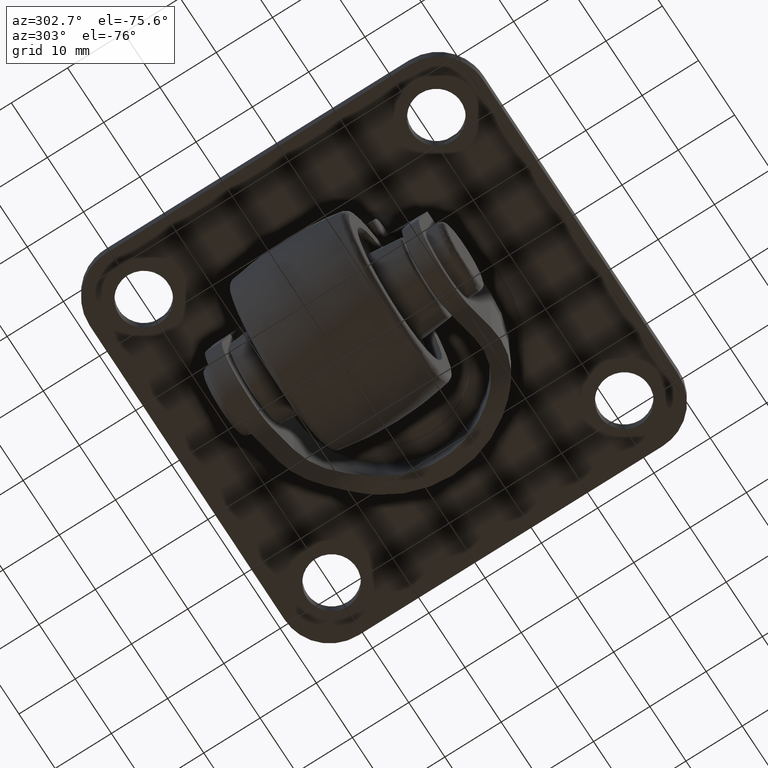
[diagram: clean part render]
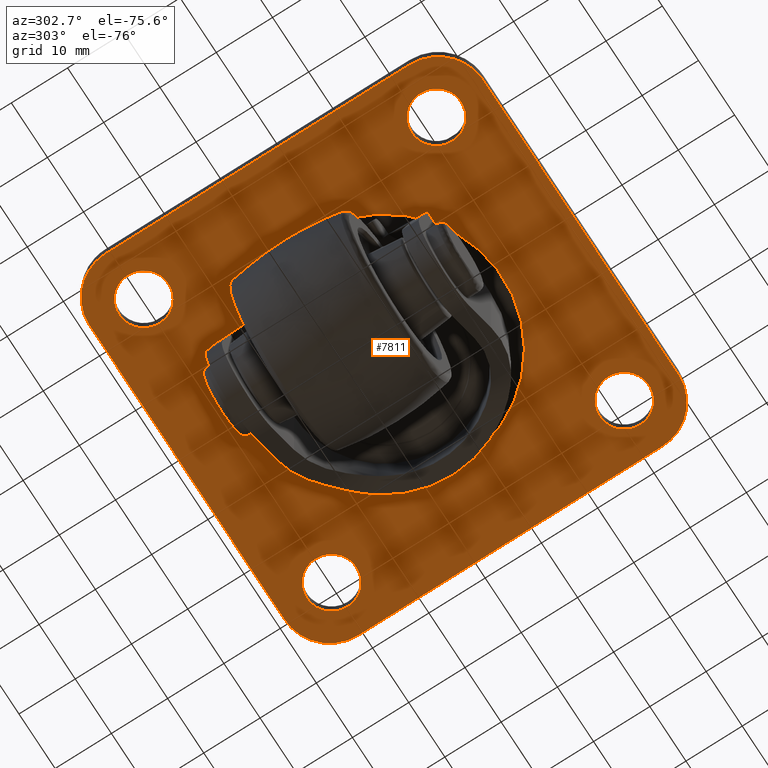
[diagram: same view with one face highlighted and labeled with its STEP entity id]
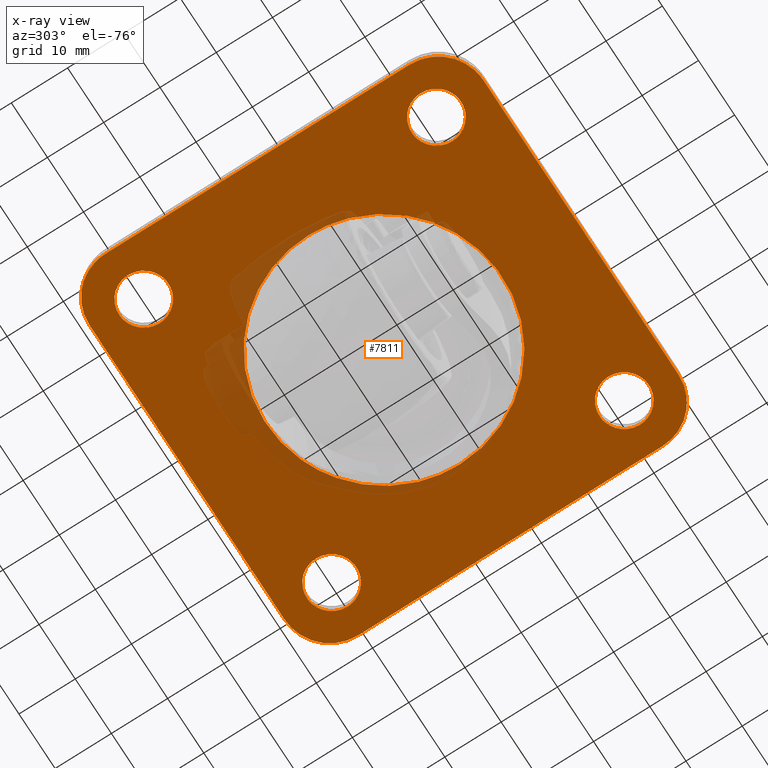
[diagram: x-ray of the same camera — body ghosted, the highlighted face saturated]
A machine part, auxiliary view. The second image highlights one B-rep face of the part: STEP entity #7811.
The next image is the same camera in x-ray: the body ghosted, the highlighted face saturated — about 6% of this face is hidden behind the body in this view.
In plain terms, the highlighted face is a freeform B-spline surface patch.
Its self-contained STEP definition (entity closure, byte-faithful):
#2657=CARTESIAN_POINT('',(37.480649367378497,21.630758084015529,27.699999999999999));
#2658=VERTEX_POINT('',#2657);
#2659=CARTESIAN_POINT('',(42.399999999999999,26.0,27.699999999999999));
#2660=VERTEX_POINT('',#2659);
#2661=CARTESIAN_POINT('',(37.480649367378497,21.630758084015529,27.700000000000006));
#2662=CARTESIAN_POINT('',(37.739413873398455,21.599999999999998,27.699999999999999));
#2663=CARTESIAN_POINT('',(38.0,21.600000000000001,27.699999999999999));
#2664=CARTESIAN_POINT('',(42.400000000000006,21.600000000000005,27.700000000000003));
#2665=CARTESIAN_POINT('',(42.399999999999999,26.0,27.699999999999999));
#2673=(BOUNDED_CURVE()B_SPLINE_CURVE(2,(#2661,#2662,#2663,#2664,#2665),.UNSPECIFIED.,.F.,.U.)B_SPLINE_CURVE_WITH_KNOTS((3,2,3),(0.229562473505452,0.250000000000000,0.500000000000000),.UNSPECIFIED.)CURVE()GEOMETRIC_REPRESENTATION_ITEM()RATIONAL_B_SPLINE_CURVE((0.956026754167909,0.976055948321707,1.0,0.707106781186548,1.0))REPRESENTATION_ITEM(''));
#2674=EDGE_CURVE('',#2658,#2660,#2673,.T.);
#2715=CARTESIAN_POINT('',(38.268609119550703,30.391793385494619,27.699999999999878));
#2716=VERTEX_POINT('',#2715);
#2722=CARTESIAN_POINT('',(42.399999999999999,26.0,27.699999999999999));
#2723=CARTESIAN_POINT('',(42.399999999999999,30.139110900345699,27.699999999999992));
#2724=CARTESIAN_POINT('',(38.268609119550703,30.391793385494619,27.699999999999878));
#2732=(BOUNDED_CURVE()B_SPLINE_CURVE(2,(#2722,#2723,#2724),.UNSPECIFIED.,.F.,.U.)B_SPLINE_CURVE_WITH_KNOTS((3,3),(0.500000000000000,0.739333137248614),.UNSPECIFIED.)CURVE()GEOMETRIC_REPRESENTATION_ITEM()RATIONAL_B_SPLINE_CURVE((1.0,0.719603788250127,0.976072416746044))REPRESENTATION_ITEM(''));
#2733=EDGE_CURVE('',#2660,#2716,#2732,.T.);
#2756=CARTESIAN_POINT('',(33.600000000000001,26.0,27.699999999999999));
#2757=VERTEX_POINT('',#2756);
#2758=CARTESIAN_POINT('',(33.600000000000001,26.0,27.699999999999999));
#2759=CARTESIAN_POINT('',(33.600000000000001,22.092032086051322,27.700000000000003));
#2760=CARTESIAN_POINT('',(37.480649367378504,21.630758084015536,27.700000000000003));
#2768=(BOUNDED_CURVE()B_SPLINE_CURVE(2,(#2758,#2759,#2760),.UNSPECIFIED.,.F.,.U.)B_SPLINE_CURVE_WITH_KNOTS((3,3),(0.0,0.229562473505452),.UNSPECIFIED.)CURVE()GEOMETRIC_REPRESENTATION_ITEM()RATIONAL_B_SPLINE_CURVE((1.0,0.731050832864841,0.956026754167909))REPRESENTATION_ITEM(''));
#2769=EDGE_CURVE('',#2757,#2658,#2768,.T.);
#2771=CARTESIAN_POINT('',(38.268609119550703,30.391793385494619,27.699999999999878));
#2772=CARTESIAN_POINT('',(38.134429925067771,30.400000000000002,27.699999999999999));
#2773=CARTESIAN_POINT('',(38.0,30.399999999999999,27.699999999999999));
#2774=CARTESIAN_POINT('',(33.600000000000001,30.400000000000002,27.700000000000003));
#2775=CARTESIAN_POINT('',(33.600000000000001,26.0,27.699999999999999));
#2783=(BOUNDED_CURVE()B_SPLINE_CURVE(2,(#2771,#2772,#2773,#2774,#2775),.UNSPECIFIED.,.F.,.U.)B_SPLINE_CURVE_WITH_KNOTS((3,2,3),(0.739333137248614,0.750000000000000,1.0),.UNSPECIFIED.)CURVE()GEOMETRIC_REPRESENTATION_ITEM()RATIONAL_B_SPLINE_CURVE((0.976072416746044,0.987502992936421,1.0,0.707106781186548,1.0))REPRESENTATION_ITEM(''));
#2784=EDGE_CURVE('',#2716,#2757,#2783,.T.);
#2843=CARTESIAN_POINT('',(37.480649367378497,-30.369241915984471,27.699999999999999));
#2844=VERTEX_POINT('',#2843);
#2845=CARTESIAN_POINT('',(42.399999999999999,-26.0,27.699999999999999));
#2846=VERTEX_POINT('',#2845);
#2847=CARTESIAN_POINT('',(37.480649367378497,-30.369241915984471,27.700000000000006));
#2848=CARTESIAN_POINT('',(37.739413873398455,-30.399999999999999,27.699999999999999));
#2849=CARTESIAN_POINT('',(38.0,-30.399999999999999,27.699999999999999));
#2850=CARTESIAN_POINT('',(42.400000000000006,-30.400000000000002,27.700000000000003));
#2851=CARTESIAN_POINT('',(42.399999999999999,-26.0,27.699999999999999));
#2859=(BOUNDED_CURVE()B_SPLINE_CURVE(2,(#2847,#2848,#2849,#2850,#2851),.UNSPECIFIED.,.F.,.U.)B_SPLINE_CURVE_WITH_KNOTS((3,2,3),(0.229562473505452,0.250000000000000,0.500000000000000),.UNSPECIFIED.)CURVE()GEOMETRIC_REPRESENTATION_ITEM()RATIONAL_B_SPLINE_CURVE((0.956026754167909,0.976055948321707,1.0,0.707106781186548,1.0))REPRESENTATION_ITEM(''));
#2860=EDGE_CURVE('',#2844,#2846,#2859,.T.);
#2901=CARTESIAN_POINT('',(38.268609119550703,-21.608206614505381,27.699999999999878));
#2902=VERTEX_POINT('',#2901);
#2908=CARTESIAN_POINT('',(42.399999999999999,-26.0,27.699999999999999));
#2909=CARTESIAN_POINT('',(42.399999999999999,-21.860889099654294,27.699999999999992));
#2910=CARTESIAN_POINT('',(38.268609119550703,-21.608206614505381,27.699999999999878));
#2918=(BOUNDED_CURVE()B_SPLINE_CURVE(2,(#2908,#2909,#2910),.UNSPECIFIED.,.F.,.U.)B_SPLINE_CURVE_WITH_KNOTS((3,3),(0.500000000000000,0.739333137248614),.UNSPECIFIED.)CURVE()GEOMETRIC_REPRESENTATION_ITEM()RATIONAL_B_SPLINE_CURVE((1.0,0.719603788250127,0.976072416746044))REPRESENTATION_ITEM(''));
#2919=EDGE_CURVE('',#2846,#2902,#2918,.T.);
#2942=CARTESIAN_POINT('',(33.600000000000001,-26.0,27.699999999999999));
#2943=VERTEX_POINT('',#2942);
#2944=CARTESIAN_POINT('',(33.600000000000001,-26.0,27.699999999999999));
#2945=CARTESIAN_POINT('',(33.600000000000001,-29.907967913948671,27.700000000000003));
#2946=CARTESIAN_POINT('',(37.480649367378504,-30.369241915984468,27.700000000000003));
#2954=(BOUNDED_CURVE()B_SPLINE_CURVE(2,(#2944,#2945,#2946),.UNSPECIFIED.,.F.,.U.)B_SPLINE_CURVE_WITH_KNOTS((3,3),(0.0,0.229562473505452),.UNSPECIFIED.)CURVE()GEOMETRIC_REPRESENTATION_ITEM()RATIONAL_B_SPLINE_CURVE((1.0,0.731050832864841,0.956026754167909))REPRESENTATION_ITEM(''));
#2955=EDGE_CURVE('',#2943,#2844,#2954,.T.);
#2957=CARTESIAN_POINT('',(38.268609119550703,-21.608206614505381,27.699999999999878));
#2958=CARTESIAN_POINT('',(38.134429925067771,-21.599999999999994,27.699999999999999));
#2959=CARTESIAN_POINT('',(38.0,-21.600000000000001,27.699999999999999));
#2960=CARTESIAN_POINT('',(33.600000000000001,-21.600000000000005,27.700000000000003));
#2961=CARTESIAN_POINT('',(33.600000000000001,-26.0,27.699999999999999));
#2969=(BOUNDED_CURVE()B_SPLINE_CURVE(2,(#2957,#2958,#2959,#2960,#2961),.UNSPECIFIED.,.F.,.U.)B_SPLINE_CURVE_WITH_KNOTS((3,2,3),(0.739333137248614,0.750000000000000,1.0),.UNSPECIFIED.)CURVE()GEOMETRIC_REPRESENTATION_ITEM()RATIONAL_B_SPLINE_CURVE((0.976072416746044,0.987502992936421,1.0,0.707106781186548,1.0))REPRESENTATION_ITEM(''));
#2970=EDGE_CURVE('',#2902,#2943,#2969,.T.);
#3029=CARTESIAN_POINT('',(-14.519350632621480,-30.369241915984471,27.699999999999999));
#3030=VERTEX_POINT('',#3029);
#3031=CARTESIAN_POINT('',(-9.600000000000001,-26.0,27.699999999999999));
#3032=VERTEX_POINT('',#3031);
#3033=CARTESIAN_POINT('',(-14.519350632621480,-30.369241915984464,27.700000000000003));
#3034=CARTESIAN_POINT('',(-14.260586126601543,-30.399999999999991,27.699999999999999));
#3035=CARTESIAN_POINT('',(-14.0,-30.399999999999999,27.699999999999999));
#3036=CARTESIAN_POINT('',(-9.600000000000001,-30.400000000000002,27.700000000000003));
#3037=CARTESIAN_POINT('',(-9.600000000000001,-26.0,27.699999999999999));
#3045=(BOUNDED_CURVE()B_SPLINE_CURVE(2,(#3033,#3034,#3035,#3036,#3037),.UNSPECIFIED.,.F.,.U.)B_SPLINE_CURVE_WITH_KNOTS((3,2,3),(0.229562473505453,0.250000000000000,0.500000000000000),.UNSPECIFIED.)CURVE()GEOMETRIC_REPRESENTATION_ITEM()RATIONAL_B_SPLINE_CURVE((0.956026754167910,0.976055948321707,1.0,0.707106781186548,1.0))REPRESENTATION_ITEM(''));
#3046=EDGE_CURVE('',#3030,#3032,#3045,.T.);
#3087=CARTESIAN_POINT('',(-13.731390880449300,-21.608206614505381,27.699999999999878));
#3088=VERTEX_POINT('',#3087);
#3094=CARTESIAN_POINT('',(-9.600000000000001,-26.0,27.699999999999999));
#3095=CARTESIAN_POINT('',(-9.600000000000001,-21.860889099654294,27.699999999999992));
#3096=CARTESIAN_POINT('',(-13.731390880449297,-21.608206614505381,27.699999999999878));
#3104=(BOUNDED_CURVE()B_SPLINE_CURVE(2,(#3094,#3095,#3096),.UNSPECIFIED.,.F.,.U.)B_SPLINE_CURVE_WITH_KNOTS((3,3),(0.500000000000000,0.739333137248614),.UNSPECIFIED.)CURVE()GEOMETRIC_REPRESENTATION_ITEM()RATIONAL_B_SPLINE_CURVE((1.0,0.719603788250127,0.976072416746044))REPRESENTATION_ITEM(''));
#3105=EDGE_CURVE('',#3032,#3088,#3104,.T.);
#3128=CARTESIAN_POINT('',(-18.399999999999999,-26.0,27.699999999999999));
#3129=VERTEX_POINT('',#3128);
#3130=CARTESIAN_POINT('',(-18.399999999999999,-26.0,27.699999999999999));
#3131=CARTESIAN_POINT('',(-18.399999999999991,-29.907967913948696,27.700000000000014));
#3132=CARTESIAN_POINT('',(-14.519350632621483,-30.369241915984471,27.700000000000010));
#3140=(BOUNDED_CURVE()B_SPLINE_CURVE(2,(#3130,#3131,#3132),.UNSPECIFIED.,.F.,.U.)B_SPLINE_CURVE_WITH_KNOTS((3,3),(0.0,0.229562473505453),.UNSPECIFIED.)CURVE()GEOMETRIC_REPRESENTATION_ITEM()RATIONAL_B_SPLINE_CURVE((1.0,0.731050832864841,0.956026754167910))REPRESENTATION_ITEM(''));
#3141=EDGE_CURVE('',#3129,#3030,#3140,.T.);
#3143=CARTESIAN_POINT('',(-13.731390880449304,-21.608206614505388,27.699999999999871));
#3144=CARTESIAN_POINT('',(-13.865570074932227,-21.600000000000005,27.700000000000006));
#3145=CARTESIAN_POINT('',(-14.0,-21.600000000000001,27.699999999999999));
#3146=CARTESIAN_POINT('',(-18.399999999999991,-21.600000000000005,27.700000000000003));
#3147=CARTESIAN_POINT('',(-18.399999999999999,-26.0,27.699999999999999));
#3155=(BOUNDED_CURVE()B_SPLINE_CURVE(2,(#3143,#3144,#3145,#3146,#3147),.UNSPECIFIED.,.F.,.U.)B_SPLINE_CURVE_WITH_KNOTS((3,2,3),(0.739333137248614,0.750000000000000,1.0),.UNSPECIFIED.)CURVE()GEOMETRIC_REPRESENTATION_ITEM()RATIONAL_B_SPLINE_CURVE((0.976072416746045,0.987502992936421,1.0,0.707106781186548,1.0))REPRESENTATION_ITEM(''));
#3156=EDGE_CURVE('',#3088,#3129,#3155,.T.);
#3215=CARTESIAN_POINT('',(-14.519350632621480,21.630758084015529,27.699999999999999));
#3216=VERTEX_POINT('',#3215);
#3217=CARTESIAN_POINT('',(-9.600000000000001,26.0,27.699999999999999));
#3218=VERTEX_POINT('',#3217);
#3219=CARTESIAN_POINT('',(-14.519350632621480,21.630758084015529,27.700000000000003));
#3220=CARTESIAN_POINT('',(-14.260586126601543,21.599999999999994,27.699999999999999));
#3221=CARTESIAN_POINT('',(-14.0,21.600000000000001,27.699999999999999));
#3222=CARTESIAN_POINT('',(-9.600000000000001,21.600000000000005,27.700000000000003));
#3223=CARTESIAN_POINT('',(-9.600000000000001,26.0,27.699999999999999));
#3231=(BOUNDED_CURVE()B_SPLINE_CURVE(2,(#3219,#3220,#3221,#3222,#3223),.UNSPECIFIED.,.F.,.U.)B_SPLINE_CURVE_WITH_KNOTS((3,2,3),(0.229562473505453,0.250000000000000,0.500000000000000),.UNSPECIFIED.)CURVE()GEOMETRIC_REPRESENTATION_ITEM()RATIONAL_B_SPLINE_CURVE((0.956026754167910,0.976055948321707,1.0,0.707106781186548,1.0))REPRESENTATION_ITEM(''));
#3232=EDGE_CURVE('',#3216,#3218,#3231,.T.);
#3273=CARTESIAN_POINT('',(-13.731390880449300,30.391793385494619,27.699999999999878));
#3274=VERTEX_POINT('',#3273);
#3280=CARTESIAN_POINT('',(-9.600000000000001,26.0,27.699999999999999));
#3281=CARTESIAN_POINT('',(-9.600000000000001,30.139110900345699,27.699999999999992));
#3282=CARTESIAN_POINT('',(-13.731390880449297,30.391793385494619,27.699999999999878));
#3290=(BOUNDED_CURVE()B_SPLINE_CURVE(2,(#3280,#3281,#3282),.UNSPECIFIED.,.F.,.U.)B_SPLINE_CURVE_WITH_KNOTS((3,3),(0.500000000000000,0.739333137248614),.UNSPECIFIED.)CURVE()GEOMETRIC_REPRESENTATION_ITEM()RATIONAL_B_SPLINE_CURVE((1.0,0.719603788250127,0.976072416746044))REPRESENTATION_ITEM(''));
#3291=EDGE_CURVE('',#3218,#3274,#3290,.T.);
#3314=CARTESIAN_POINT('',(-18.399999999999999,26.0,27.699999999999999));
#3315=VERTEX_POINT('',#3314);
#3316=CARTESIAN_POINT('',(-18.399999999999999,26.0,27.699999999999999));
#3317=CARTESIAN_POINT('',(-18.399999999999991,22.092032086051308,27.699999999999999));
#3318=CARTESIAN_POINT('',(-14.519350632621483,21.630758084015522,27.700000000000010));
#3326=(BOUNDED_CURVE()B_SPLINE_CURVE(2,(#3316,#3317,#3318),.UNSPECIFIED.,.F.,.U.)B_SPLINE_CURVE_WITH_KNOTS((3,3),(0.0,0.229562473505453),.UNSPECIFIED.)CURVE()GEOMETRIC_REPRESENTATION_ITEM()RATIONAL_B_SPLINE_CURVE((1.0,0.731050832864841,0.956026754167910))REPRESENTATION_ITEM(''));
#3327=EDGE_CURVE('',#3315,#3216,#3326,.T.);
#3329=CARTESIAN_POINT('',(-13.731390880449304,30.391793385494612,27.699999999999871));
#3330=CARTESIAN_POINT('',(-13.865570074932227,30.399999999999999,27.700000000000006));
#3331=CARTESIAN_POINT('',(-14.0,30.399999999999999,27.699999999999999));
#3332=CARTESIAN_POINT('',(-18.399999999999991,30.400000000000002,27.700000000000003));
#3333=CARTESIAN_POINT('',(-18.399999999999999,26.0,27.699999999999999));
#3341=(BOUNDED_CURVE()B_SPLINE_CURVE(2,(#3329,#3330,#3331,#3332,#3333),.UNSPECIFIED.,.F.,.U.)B_SPLINE_CURVE_WITH_KNOTS((3,2,3),(0.739333137248614,0.750000000000000,1.0),.UNSPECIFIED.)CURVE()GEOMETRIC_REPRESENTATION_ITEM()RATIONAL_B_SPLINE_CURVE((0.976072416746045,0.987502992936421,1.0,0.707106781186548,1.0))REPRESENTATION_ITEM(''));
#3342=EDGE_CURVE('',#3274,#3315,#3341,.T.);
#7026=CARTESIAN_POINT('',(24.810261343683639,16.640229105615340,27.699999999849599));
#7027=VERTEX_POINT('',#7026);
#7028=CARTESIAN_POINT('',(33.000000485348998,0.0,27.699999999999999));
#7029=VERTEX_POINT('',#7028);
#7030=CARTESIAN_POINT('',(24.810261343683646,16.640229105615344,27.699999999849599));
#7031=CARTESIAN_POINT('',(33.000000485349005,10.335466228036225,27.699999999999992));
#7032=CARTESIAN_POINT('',(33.000000485348998,0.0,27.699999999999999));
#7040=(BOUNDED_CURVE()B_SPLINE_CURVE(2,(#7030,#7031,#7032),.UNSPECIFIED.,.F.,.U.)B_SPLINE_CURVE_WITH_KNOTS((3,3),(0.355459593833841,0.500000000000000),.UNSPECIFIED.)CURVE()GEOMETRIC_REPRESENTATION_ITEM()RATIONAL_B_SPLINE_CURVE((0.857132100277720,0.830660380757559,1.0))REPRESENTATION_ITEM(''));
#7041=EDGE_CURVE('',#7027,#7029,#7040,.T.);
#7043=CARTESIAN_POINT('',(-9.000000485348998,0.0,27.699999999999999));
#7044=VERTEX_POINT('',#7043);
#7045=CARTESIAN_POINT('',(33.000000485348998,0.0,27.699999999999999));
#7046=CARTESIAN_POINT('',(33.000000485348991,-21.000000485349005,27.699999999999992));
#7047=CARTESIAN_POINT('',(12.0,-21.000000485348998,27.699999999999999));
#7048=CARTESIAN_POINT('',(-9.000000485348998,-21.000000485349005,27.699999999999992));
#7049=CARTESIAN_POINT('',(-9.000000485348998,0.0,27.699999999999999));
#7057=(BOUNDED_CURVE()B_SPLINE_CURVE(2,(#7045,#7046,#7047,#7048,#7049),.UNSPECIFIED.,.F.,.U.)B_SPLINE_CURVE_WITH_KNOTS((3,2,3),(0.500000000000000,0.750000000000000,1.0),.UNSPECIFIED.)CURVE()GEOMETRIC_REPRESENTATION_ITEM()RATIONAL_B_SPLINE_CURVE((1.0,0.707106781186547,1.0,0.707106781186547,1.0))REPRESENTATION_ITEM(''));
#7058=EDGE_CURVE('',#7029,#7044,#7057,.T.);
#7060=CARTESIAN_POINT('',(-6.008060196161626,10.803230459052090,27.699999999815251));
#7061=VERTEX_POINT('',#7060);
#7062=CARTESIAN_POINT('',(-9.000000485348998,0.0,27.699999999999999));
#7063=CARTESIAN_POINT('',(-9.000000485349000,5.815922168927093,27.699999999999996));
#7064=CARTESIAN_POINT('',(-6.008060196161627,10.803230459052093,27.699999999815255));
#7072=(BOUNDED_CURVE()B_SPLINE_CURVE(2,(#7062,#7063,#7064),.UNSPECIFIED.,.F.,.U.)B_SPLINE_CURVE_WITH_KNOTS((3,3),(0.0,0.087839548341276),.UNSPECIFIED.)CURVE()GEOMETRIC_REPRESENTATION_ITEM()RATIONAL_B_SPLINE_CURVE((1.0,0.897089567788815,0.866495982657918))REPRESENTATION_ITEM(''));
#7073=EDGE_CURVE('',#7044,#7061,#7072,.T.);
#7176=CARTESIAN_POINT('',(-6.008060196161627,10.803230459052093,27.699999999815248));
#7177=CARTESIAN_POINT('',(0.109092641509741,21.000000485349002,27.699999999999996));
#7178=CARTESIAN_POINT('',(12.0,21.000000485348998,27.699999999999999));
#7179=CARTESIAN_POINT('',(19.147020551122829,21.000000485348998,27.700000000000003));
#7180=CARTESIAN_POINT('',(24.810261343683639,16.640229105615347,27.699999999849602));
#7188=(BOUNDED_CURVE()B_SPLINE_CURVE(2,(#7176,#7177,#7178,#7179,#7180),.UNSPECIFIED.,.F.,.U.)B_SPLINE_CURVE_WITH_KNOTS((3,2,3),(0.087839548341276,0.250000000000000,0.355459593833841),.UNSPECIFIED.)CURVE()GEOMETRIC_REPRESENTATION_ITEM()RATIONAL_B_SPLINE_CURVE((0.866495982657918,0.810017213397733,1.0,0.876446400428988,0.857132100277719))REPRESENTATION_ITEM(''));
#7189=EDGE_CURVE('',#7061,#7027,#7188,.T.);
#7448=CARTESIAN_POINT('',(38.999999860373649,34.999995999999797,27.699999999999999));
#7449=VERTEX_POINT('',#7448);
#7455=CARTESIAN_POINT('',(-15.0,34.999995999999797,27.699999999999999));
#7456=VERTEX_POINT('',#7455);
#7457=CARTESIAN_POINT('',(38.999999860373649,34.999995999999797,27.699999999999999));
#7458=CARTESIAN_POINT('',(-15.0,34.999995999999797,27.699999999999999));
#7459=QUASI_UNIFORM_CURVE('',1,(#7457,#7458),.UNSPECIFIED.,.F.,.U.);
#7460=EDGE_CURVE('',#7449,#7456,#7459,.T.);
#7501=CARTESIAN_POINT('',(47.0,26.999995999999800,27.699999999999999));
#7502=VERTEX_POINT('',#7501);
#7508=CARTESIAN_POINT('',(47.0,26.999995999999800,27.699999999999999));
#7509=CARTESIAN_POINT('',(47.0,30.313704539880177,27.699999999999996));
#7510=CARTESIAN_POINT('',(44.656854200127007,32.656850298857549,27.699999999999999));
#7511=CARTESIAN_POINT('',(42.313708400254022,34.999996057834927,27.699999999999996));
#7512=CARTESIAN_POINT('',(38.999999860373649,34.999995999999797,27.699999999999999));
#7520=(BOUNDED_CURVE()B_SPLINE_CURVE(2,(#7508,#7509,#7510,#7511,#7512),.UNSPECIFIED.,.F.,.U.)B_SPLINE_CURVE_WITH_KNOTS((3,2,3),(0.0,0.500000000000000,1.0),.UNSPECIFIED.)CURVE()GEOMETRIC_REPRESENTATION_ITEM()RATIONAL_B_SPLINE_CURVE((1.0,0.923879530841515,1.0,0.923879530841515,1.0))REPRESENTATION_ITEM(''));
#7521=EDGE_CURVE('',#7502,#7449,#7520,.T.);
#7539=CARTESIAN_POINT('',(47.0,-26.999999860373649,27.699999999999999));
#7540=VERTEX_POINT('',#7539);
#7546=CARTESIAN_POINT('',(47.0,-26.999999860373649,27.699999999999999));
#7547=CARTESIAN_POINT('',(47.0,26.999995999999800,27.699999999999999));
#7548=QUASI_UNIFORM_CURVE('',1,(#7546,#7547),.UNSPECIFIED.,.F.,.U.);
#7549=EDGE_CURVE('',#7540,#7502,#7548,.T.);
#7586=CARTESIAN_POINT('',(39.0,-35.0,27.699999999999999));
#7587=VERTEX_POINT('',#7586);
#7593=CARTESIAN_POINT('',(39.0,-35.0,27.699999999999999));
#7594=CARTESIAN_POINT('',(42.313708539880359,-35.0,27.699999999999999));
#7595=CARTESIAN_POINT('',(44.656854298857752,-32.656854200127022,27.699999999999999));
#7596=CARTESIAN_POINT('',(47.000000057835116,-30.313708400254022,27.699999999999999));
#7597=CARTESIAN_POINT('',(47.0,-26.999999860373659,27.699999999999999));
#7605=(BOUNDED_CURVE()B_SPLINE_CURVE(2,(#7593,#7594,#7595,#7596,#7597),.UNSPECIFIED.,.F.,.U.)B_SPLINE_CURVE_WITH_KNOTS((3,2,3),(0.0,0.500000000000000,1.0),.UNSPECIFIED.)CURVE()GEOMETRIC_REPRESENTATION_ITEM()RATIONAL_B_SPLINE_CURVE((1.0,0.923879530841515,1.0,0.923879530841515,1.0))REPRESENTATION_ITEM(''));
#7606=EDGE_CURVE('',#7587,#7540,#7605,.T.);
#7624=CARTESIAN_POINT('',(-15.000001256637050,-35.0,27.699999999999999));
#7625=VERTEX_POINT('',#7624);
#7631=CARTESIAN_POINT('',(-15.000001256637050,-35.0,27.699999999999999));
#7632=CARTESIAN_POINT('',(39.0,-35.0,27.699999999999999));
#7633=QUASI_UNIFORM_CURVE('',1,(#7631,#7632),.UNSPECIFIED.,.F.,.U.);
#7634=EDGE_CURVE('',#7625,#7587,#7633,.T.);
#7669=CARTESIAN_POINT('',(-23.0,-27.0,27.699999999999999));
#7670=VERTEX_POINT('',#7669);
#7676=CARTESIAN_POINT('',(-23.0,-27.0,27.699999999999999));
#7677=CARTESIAN_POINT('',(-22.999999999999996,-34.999998743363044,27.700000000000006));
#7678=CARTESIAN_POINT('',(-15.000001256637050,-34.999999999999901,27.699999999999999));
#7686=(BOUNDED_CURVE()B_SPLINE_CURVE(2,(#7676,#7677,#7678),.UNSPECIFIED.,.F.,.U.)CURVE()GEOMETRIC_REPRESENTATION_ITEM()QUASI_UNIFORM_CURVE()RATIONAL_B_SPLINE_CURVE((1.0,0.707106836722581,1.0))REPRESENTATION_ITEM(''));
#7687=EDGE_CURVE('',#7670,#7625,#7686,.T.);
#7705=CARTESIAN_POINT('',(-23.0,26.999995999999800,27.699999999999999));
#7706=VERTEX_POINT('',#7705);
#7712=CARTESIAN_POINT('',(-23.0,26.999995999999800,27.699999999999999));
#7713=CARTESIAN_POINT('',(-23.0,-27.0,27.699999999999999));
#7714=QUASI_UNIFORM_CURVE('',1,(#7712,#7713),.UNSPECIFIED.,.F.,.U.);
#7715=EDGE_CURVE('',#7706,#7670,#7714,.T.);
#7749=CARTESIAN_POINT('',(-15.0,34.999995999999797,27.699999999999999));
#7750=CARTESIAN_POINT('',(-22.999999999999993,34.999995999999804,27.700000000000003));
#7751=CARTESIAN_POINT('',(-23.0,26.999995999999800,27.699999999999999));
#7759=(BOUNDED_CURVE()B_SPLINE_CURVE(2,(#7749,#7750,#7751),.UNSPECIFIED.,.F.,.U.)CURVE()GEOMETRIC_REPRESENTATION_ITEM()QUASI_UNIFORM_CURVE()RATIONAL_B_SPLINE_CURVE((1.0,0.707106781186548,1.0))REPRESENTATION_ITEM(''));
#7760=EDGE_CURVE('',#7456,#7706,#7759,.T.);
#7766=CARTESIAN_POINT('',(-26.496499864326420,38.496496321636087,27.699999999999999));
#7767=CARTESIAN_POINT('',(50.496501741872727,38.496496321636087,27.699999999999999));
#7768=CARTESIAN_POINT('',(-26.496499864326420,-38.496501573333759,27.699999999999999));
#7769=CARTESIAN_POINT('',(50.496501741872727,-38.496501573333759,27.699999999999999));
#7770=B_SPLINE_SURFACE_WITH_KNOTS('',1,1,((#7766,#7768),(#7767,#7769)),.UNSPECIFIED.,.F.,.F.,.U.,(2,2),(2,2),(0.0,76.993001606199158),(0.0,76.992997894969847),.UNSPECIFIED.);
#7771=ORIENTED_EDGE('',*,*,#7760,.F.);
#7772=ORIENTED_EDGE('',*,*,#7460,.F.);
#7773=ORIENTED_EDGE('',*,*,#7521,.F.);
#7774=ORIENTED_EDGE('',*,*,#7549,.F.);
#7775=ORIENTED_EDGE('',*,*,#7606,.F.);
#7776=ORIENTED_EDGE('',*,*,#7634,.F.);
#7777=ORIENTED_EDGE('',*,*,#7687,.F.);
#7778=ORIENTED_EDGE('',*,*,#7715,.F.);
#7779=EDGE_LOOP('',(#7771,#7772,#7773,#7774,#7775,#7776,#7777,#7778));
#7780=FACE_OUTER_BOUND('',#7779,.T.);
#7781=ORIENTED_EDGE('',*,*,#7058,.F.);
#7782=ORIENTED_EDGE('',*,*,#7041,.F.);
#7783=ORIENTED_EDGE('',*,*,#7189,.F.);
#7784=ORIENTED_EDGE('',*,*,#7073,.F.);
#7785=EDGE_LOOP('',(#7781,#7782,#7783,#7784));
#7786=FACE_BOUND('',#7785,.T.);
#7787=ORIENTED_EDGE('',*,*,#3291,.T.);
#7788=ORIENTED_EDGE('',*,*,#3342,.T.);
#7789=ORIENTED_EDGE('',*,*,#3327,.T.);
#7790=ORIENTED_EDGE('',*,*,#3232,.T.);
#7791=EDGE_LOOP('',(#7787,#7788,#7789,#7790));
#7792=FACE_BOUND('',#7791,.T.);
#7793=ORIENTED_EDGE('',*,*,#3105,.T.);
#7794=ORIENTED_EDGE('',*,*,#3156,.T.);
#7795=ORIENTED_EDGE('',*,*,#3141,.T.);
#7796=ORIENTED_EDGE('',*,*,#3046,.T.);
#7797=EDGE_LOOP('',(#7793,#7794,#7795,#7796));
#7798=FACE_BOUND('',#7797,.T.);
#7799=ORIENTED_EDGE('',*,*,#2919,.T.);
#7800=ORIENTED_EDGE('',*,*,#2970,.T.);
#7801=ORIENTED_EDGE('',*,*,#2955,.T.);
#7802=ORIENTED_EDGE('',*,*,#2860,.T.);
#7803=EDGE_LOOP('',(#7799,#7800,#7801,#7802));
#7804=FACE_BOUND('',#7803,.T.);
#7805=ORIENTED_EDGE('',*,*,#2733,.T.);
#7806=ORIENTED_EDGE('',*,*,#2784,.T.);
#7807=ORIENTED_EDGE('',*,*,#2769,.T.);
#7808=ORIENTED_EDGE('',*,*,#2674,.T.);
#7809=EDGE_LOOP('',(#7805,#7806,#7807,#7808));
#7810=FACE_BOUND('',#7809,.T.);
#7811=ADVANCED_FACE('',(#7780,#7786,#7792,#7798,#7804,#7810),#7770,.T.);